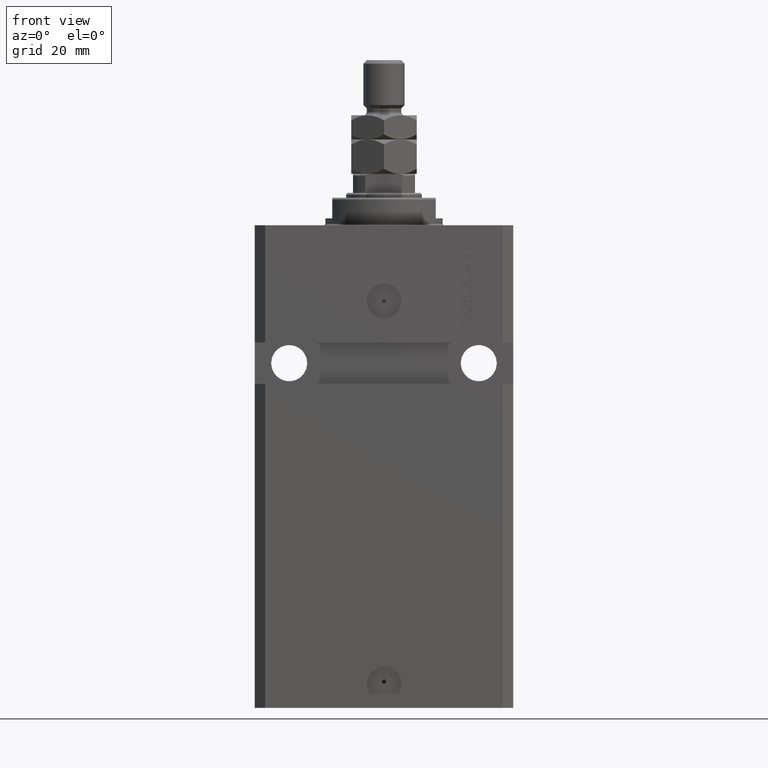
[diagram: clean part render]
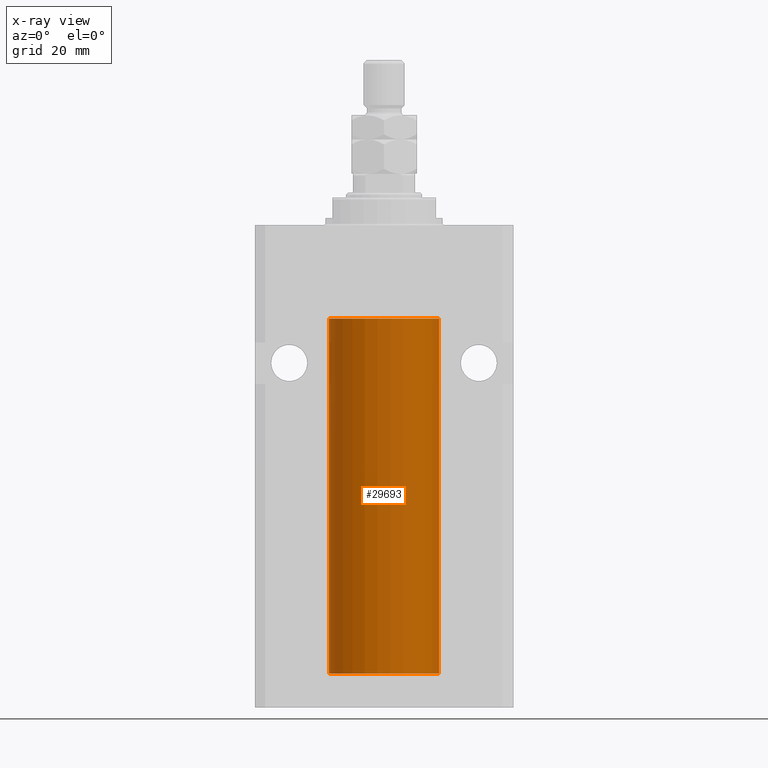
[diagram: x-ray — body ghosted, one internal face saturated and labeled with its STEP entity id]
A machine part, front view, then the same camera in x-ray: the body is ghosted and one INTERNAL B-rep face — a face not visible from any outside direction — is saturated and labeled: STEP entity #29693.
In plain terms, the highlighted cylindrical surface (partial cylindrical patch) has radius 16 mm, axis along (0, 0, 1).
Its self-contained STEP definition (entity closure, byte-faithful):
#892 = FACE_OUTER_BOUND ( 'NONE', #19373, .T. ) ;
#1379 = CYLINDRICAL_SURFACE ( 'NONE', #8025, 16.00000000000000000 ) ;
#3042 = ORIENTED_EDGE ( 'NONE', *, *, #21906, .T. ) ;
#3165 = CARTESIAN_POINT ( 'NONE',  ( -16.00000000000000000, -1.314639473218082033E-14, -127.3749999999999858 ) ) ;
#4081 = CARTESIAN_POINT ( 'NONE',  ( -16.00000000000000000, 1.959434878635765131E-15, -130.0999999999999943 ) ) ;
#4463 = ORIENTED_EDGE ( 'NONE', *, *, #30869, .T. ) ;
#6719 = CARTESIAN_POINT ( 'NONE',  ( -15.99707459521409625, -0.3269651631532018987, -127.4429184892856028 ) ) ;
#8025 = AXIS2_PLACEMENT_3D ( 'NONE', #22928, #15341, #15570 ) ;
#8562 = CARTESIAN_POINT ( 'NONE',  ( 0.000000000000000000, 0.000000000000000000, -130.0999999999999943 ) ) ;
#9653 = CARTESIAN_POINT ( 'NONE',  ( -15.99069874693027948, -0.5575440858643410103, -127.6738242501145066 ) ) ;
#10133 = CARTESIAN_POINT ( 'NONE',  ( -15.99708815688950381, -0.3263115027448994510, -128.5574096919822580 ) ) ;
#10985 = VECTOR ( 'NONE', #42968, 1000.000000000000000 ) ;
#12326 = VERTEX_POINT ( 'NONE', #47082 ) ;
#13092 = LINE ( 'NONE', #28039, #10985 ) ;
#13308 = CARTESIAN_POINT ( 'NONE',  ( -15.99071965633095793, -0.5569502390237165423, -128.3270950821868439 ) ) ;
#13560 = CARTESIAN_POINT ( 'NONE',  ( -16.00000000000000000, -1.314639473218082033E-14, -127.3749999999999858 ) ) ;
#14552 = ORIENTED_EDGE ( 'NONE', *, *, #46507, .F. ) ;
#15341 = DIRECTION ( 'NONE',  ( -0.000000000000000000, -0.000000000000000000, 1.000000000000000000 ) ) ;
#15376 = DIRECTION ( 'NONE',  ( -0.000000000000000000, -0.000000000000000000, 1.000000000000000000 ) ) ;
#15570 = DIRECTION ( 'NONE',  ( 1.000000000000000000, 0.000000000000000000, 0.000000000000000000 ) ) ;
#15851 = LINE ( 'NONE', #30802, #27470 ) ;
#16133 = DIRECTION ( 'NONE',  ( 0.000000000000000000, 0.000000000000000000, 1.000000000000000000 ) ) ;
#17239 = CARTESIAN_POINT ( 'NONE',  ( -16.00000000000013145, 3.685127464164956467E-13, -128.6250000000034390 ) ) ;
#17361 = EDGE_CURVE ( 'NONE', #27688, #41865, #21955, .T. ) ;
#19011 = DIRECTION ( 'NONE',  ( -0.000000000000000000, -0.000000000000000000, 1.000000000000000000 ) ) ;
#19373 = EDGE_LOOP ( 'NONE', ( #14552, #3042, #24736, #4463, #36950, #30374 ) ) ;
#20414 = CIRCLE ( 'NONE', #47765, 16.00000000000000000 ) ;
#21814 = VERTEX_POINT ( 'NONE', #39779 ) ;
#21906 = EDGE_CURVE ( 'NONE', #21814, #27688, #13092, .T. ) ;
#21955 = B_SPLINE_CURVE_WITH_KNOTS ( 'NONE', 3,
 ( #17239, #36094, #10133, #13308, #31945, #43912, #9653, #6719, #47096, #13560 ),
 .UNSPECIFIED., .F., .F.,
 ( 4, 2, 2, 2, 4 ),
 ( 0.001954221322144799027, 0.002442665739568306450, 0.002931110156991814306, 0.003419554574415321728, 0.003907998991838829150 ),
 .UNSPECIFIED. ) ;
#22928 = CARTESIAN_POINT ( 'NONE',  ( 0.000000000000000000, 0.000000000000000000, -130.0999999999999943 ) ) ;
#23021 = DIRECTION ( 'NONE',  ( 0.000000000000000000, 0.000000000000000000, 1.000000000000000000 ) ) ;
#24354 = AXIS2_PLACEMENT_3D ( 'NONE', #42578, #16133, #34506 ) ;
#24736 = ORIENTED_EDGE ( 'NONE', *, *, #17361, .T. ) ;
#26470 = CARTESIAN_POINT ( 'NONE',  ( -16.00000000000000000, 1.959434878635765131E-15, -27.10000000000000142 ) ) ;
#27470 = VECTOR ( 'NONE', #15376, 1000.000000000000000 ) ;
#27688 = VERTEX_POINT ( 'NONE', #29002 ) ;
#28039 = CARTESIAN_POINT ( 'NONE',  ( -16.00000000000000000, 1.959434878635765131E-15, -130.0999999999999943 ) ) ;
#29002 = CARTESIAN_POINT ( 'NONE',  ( -16.00000000000013145, 3.685127464164956467E-13, -128.6250000000034390 ) ) ;
#29693 = ADVANCED_FACE ( 'NONE', ( #892 ), #1379, .F. ) ;
#29792 = LINE ( 'NONE', #4081, #32326 ) ;
#30374 = ORIENTED_EDGE ( 'NONE', *, *, #46833, .F. ) ;
#30802 = CARTESIAN_POINT ( 'NONE',  ( 16.00000000000000000, 0.000000000000000000, -130.0999999999999943 ) ) ;
#30869 = EDGE_CURVE ( 'NONE', #41865, #43497, #29792, .T. ) ;
#31945 = CARTESIAN_POINT ( 'NONE',  ( -15.98779367741636648, -0.6248626626677442619, -128.1653963198503732 ) ) ;
#32326 = VECTOR ( 'NONE', #19011, 1000.000000000000000 ) ;
#34506 = DIRECTION ( 'NONE',  ( 1.000000000000000000, 0.000000000000000000, 0.000000000000000000 ) ) ;
#36094 = CARTESIAN_POINT ( 'NONE',  ( -16.00000000000000711, -0.1631344205875858155, -128.6250000000001705 ) ) ;
#36384 = VERTEX_POINT ( 'NONE', #45924 ) ;
#36950 = ORIENTED_EDGE ( 'NONE', *, *, #47423, .T. ) ;
#38189 = DIRECTION ( 'NONE',  ( 1.000000000000000000, 0.000000000000000000, 0.000000000000000000 ) ) ;
#39219 = CIRCLE ( 'NONE', #24354, 16.00000000000000000 ) ;
#39779 = CARTESIAN_POINT ( 'NONE',  ( -16.00000000000000000, 1.959434878635765131E-15, -130.0999999999999943 ) ) ;
#41865 = VERTEX_POINT ( 'NONE', #3165 ) ;
#42578 = CARTESIAN_POINT ( 'NONE',  ( 0.000000000000000000, 0.000000000000000000, -27.10000000000000142 ) ) ;
#42968 = DIRECTION ( 'NONE',  ( -0.000000000000000000, -0.000000000000000000, 1.000000000000000000 ) ) ;
#43497 = VERTEX_POINT ( 'NONE', #26470 ) ;
#43912 = CARTESIAN_POINT ( 'NONE',  ( -15.98778295664474491, -0.6251369050462284305, -127.8356432545786561 ) ) ;
#45924 = CARTESIAN_POINT ( 'NONE',  ( 16.00000000000000000, 0.000000000000000000, -27.10000000000000142 ) ) ;
#46507 = EDGE_CURVE ( 'NONE', #21814, #12326, #20414, .T. ) ;
#46833 = EDGE_CURVE ( 'NONE', #12326, #36384, #15851, .T. ) ;
#47082 = CARTESIAN_POINT ( 'NONE',  ( 16.00000000000000000, 0.000000000000000000, -130.0999999999999943 ) ) ;
#47096 = CARTESIAN_POINT ( 'NONE',  ( -16.00000000000000000, -0.1651602165840369285, -127.3749999999999858 ) ) ;
#47423 = EDGE_CURVE ( 'NONE', #43497, #36384, #39219, .T. ) ;
#47765 = AXIS2_PLACEMENT_3D ( 'NONE', #8562, #23021, #38189 ) ;